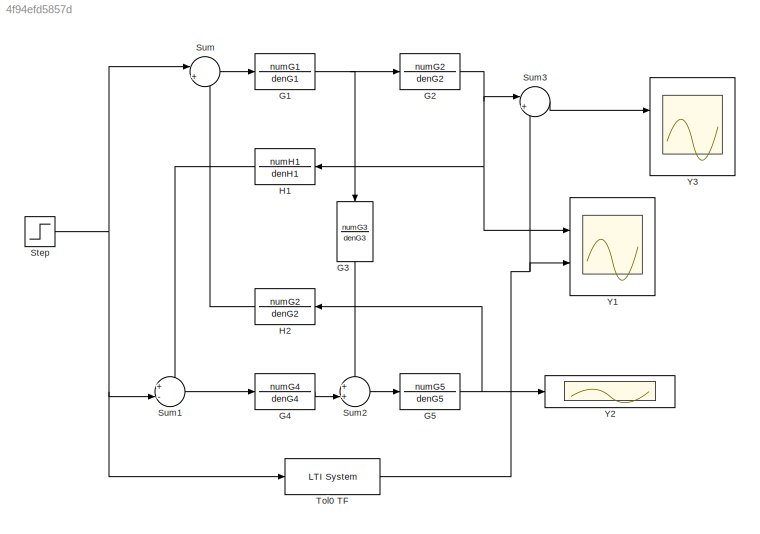
MODEL slx_4f94efd5857d
KIND model
CONFIG AbsTol = auto
CONFIG EnableMultiTasking = off
CONFIG FixedStep = auto
CONFIG MaxStep = auto
CONFIG MinStep = auto
CONFIG RelTol = 1e-3
CONFIG SampleTimeConstraint = Unconstrained
CONFIG SolverName = VariableStepAuto
CONFIG StartTime = 0.0
CONFIG StopTime = 10.0
BLOCK [TransferFcn] G1
  Denominator = denG1
  Numerator = numG1
BLOCK [TransferFcn] G2
  Denominator = denG2
  Numerator = numG2
BLOCK [TransferFcn] G3
  Denominator = denG3
  NameLocation = left
  Numerator = numG3
BLOCK [TransferFcn] G4
  Denominator = denG4
  Numerator = numG4
BLOCK [TransferFcn] G5
  Denominator = denG5
  Numerator = numG5
BLOCK [TransferFcn] H1
  Denominator = denH1
  NameLocation = top
  Numerator = numH1
BLOCK [TransferFcn] H2
  Denominator = denG2
  NameLocation = top
  Numerator = numG2
BLOCK [Step] Step
  SampleTime = 0
BLOCK [Sum] Sum
  Inputs = |+-
  Ports = [2, 1]
BLOCK [Sum] Sum1
  Inputs = +-|
  Ports = [2, 1]
BLOCK [Sum] Sum2
  Inputs = ++|
  Ports = [2, 1]
BLOCK [Sum] Sum3
  Inputs = |+-
  Ports = [2, 1]
BLOCK [Reference] Tol0 TF  REF=cstblocks/LTI System
  Ports = [1, 1]
  SourceBlock = cstblocks/LTI System
  SourceProductBaseCode = CT
  SourceType = LTI Block
BLOCK [Scope] Y1
  Floating = off
  NumInputPorts = 2
  Ports = [2]
  ScopeSpecificationString = Simulink.scopes.TimeScopeBlockCfg('CurrentConfiguration', extmgr.ConfigurationSet(extmgr.Configuration('Core','General UI',true),extmgr.Configuration('Core','Source UI',true),extmgr.Configuration('Sources','WiredSimulink',true),extmgr.Configuration('Visuals','Time Domain',true,'SerializedDisplays',{struct('MinYLimReal','-0.00017','MaxYLimReal','0.00454','YLabelReal','','MinYLimMag','0.00000','MaxY...<+1593ch>
BLOCK [Scope] Y2
  Floating = off
  NumInputPorts = 1
  Ports = [1]
  ScopeSpecificationString = Simulink.scopes.TimeScopeBlockCfg('CurrentConfiguration', extmgr.ConfigurationSet(extmgr.Configuration('Core','General UI',true),extmgr.Configuration('Core','Source UI',true),extmgr.Configuration('Sources','WiredSimulink',true,'DataLoggingVariableName','ScopeData1'),extmgr.Configuration('Visuals','Time Domain',true),extmgr.Configuration('Tools','Plot Navigation',true),extmgr.Configuration('Tools',...<+40ch>
BLOCK [Scope] Y3
  Floating = off
  NumInputPorts = 2
  Ports = [2]
  ScopeSpecificationString = Simulink.scopes.TimeScopeBlockCfg('CurrentConfiguration', extmgr.ConfigurationSet(extmgr.Configuration('Core','General UI',true),extmgr.Configuration('Core','Source UI',true),extmgr.Configuration('Sources','WiredSimulink',true,'DataLoggingVariableName','ScopeData2'),extmgr.Configuration('Visuals','Time Domain',true,'SerializedDisplays',{struct('MinYLimReal','-0.0000001','MaxYLimReal','0.0000014','...<+1699ch>
NET G1:1 -> G2:1, G3:1
NET G2:1 -> H1:1, Sum3:1, Y1:1
LINE G3:1 -> Sum2:1
LINE G4:1 -> Sum2:2
NET G5:1 -> H2:1, Y2:1
LINE H1:1 -> Sum1:1
LINE H2:1 -> Sum:2
NET Step:1 -> Sum1:2, Sum:1, Tol0 TF:1
LINE Sum1:1 -> G4:1
LINE Sum2:1 -> G5:1
LINE Sum3:1 -> Y3:1
LINE Sum:1 -> G1:1
NET Tol0 TF:1 -> Sum3:2, Y1:2
note: NET lines group one-source signal fan-out (src -> all destinations, sorted); 1:1 wires keep LINE
